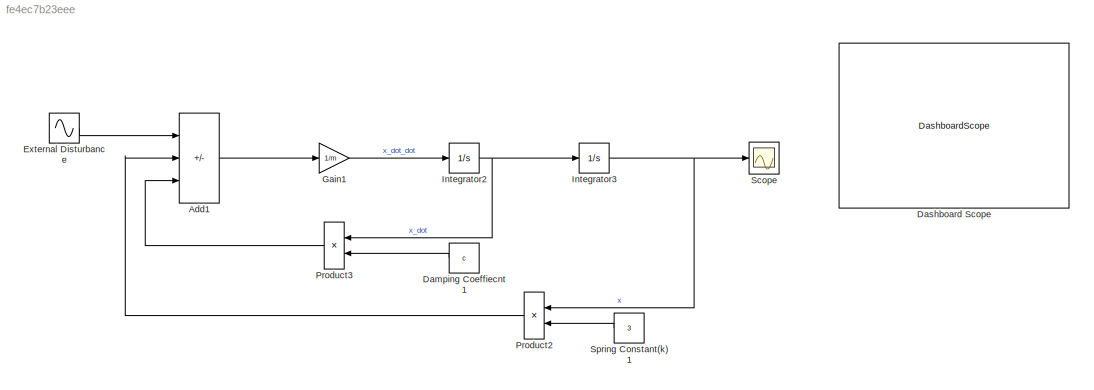
MODEL slx_fe4ec7b23eee
KIND model
CONFIG AbsTol = auto
CONFIG EnableMultiTasking = off
CONFIG FixedStep = auto
CONFIG MaxStep = auto
CONFIG MinStep = auto
CONFIG RelTol = 1e-3
CONFIG SampleTimeConstraint = Unconstrained
CONFIG SolverName = VariableStepAuto
CONFIG StartTime = 0.0
CONFIG StopTime = 50
BLOCK [Sum] Add1
  IconShape = rectangular
  Inputs = +--
  Ports = [3, 1]
BLOCK [Constant] Damping Coeffiecnt1
  Value = c
BLOCK [DashboardScope] Dashboard Scope
BLOCK [Sin] External Disturbance
  Amplitude = 0.01
  Ports = [0, 1]
  SampleTime = 0
BLOCK [Gain] Gain1
  Gain = 1/m
BLOCK [Integrator] Integrator2
  Ports = [1, 1]
BLOCK [Integrator] Integrator3
  InitialCondition = 2
  Ports = [1, 1]
BLOCK [Product] Product2
  Ports = [2, 1]
BLOCK [Product] Product3
  Ports = [2, 1]
BLOCK [Scope] Scope
  Floating = off
  NumInputPorts = 1
  Ports = [1]
  ScopeSpecificationString = Simulink.scopes.TimeScopeBlockCfg('CurrentConfiguration', extmgr.ConfigurationSet(extmgr.Configuration('Core','General UI',true,'FigureColor',[1 1 1]),extmgr.Configuration('Core','Source UI',true),extmgr.Configuration('Sources','WiredSimulink',true,'SampleTime','0.25'),extmgr.Configuration('Visuals','Time Domain',true,'SerializedDisplays',{struct('MinYLimReal','-2.37562','MaxYLimReal','1.38058','Y...<+1552ch>
BLOCK [Constant] Spring Constant(k)1
  Value = 3
LINE Add1:1 -> Gain1:1
LINE Damping Coeffiecnt1:1 -> Product3:2
LINE External Disturbance:1 -> Add1:1
LINE Gain1:1 -> Integrator2:1
NET Integrator2:1 -> Integrator3:1, Product3:1
NET Integrator3:1 -> Product2:1, Scope:1
LINE Product2:1 -> Add1:2
LINE Product3:1 -> Add1:3
LINE Spring Constant(k)1:1 -> Product2:2
note: NET lines group one-source signal fan-out (src -> all destinations, sorted); 1:1 wires keep LINE
